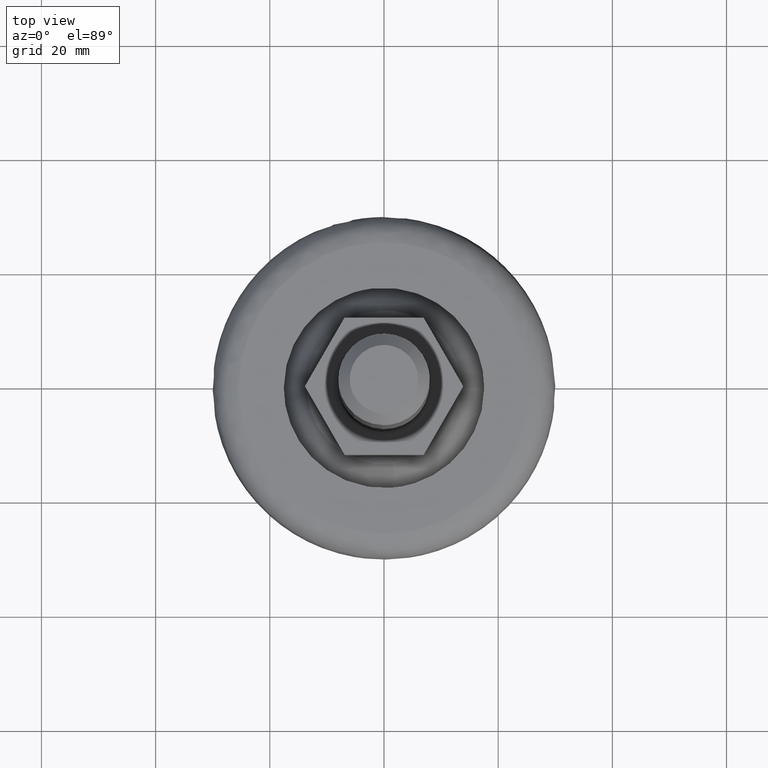
[diagram: clean part render]
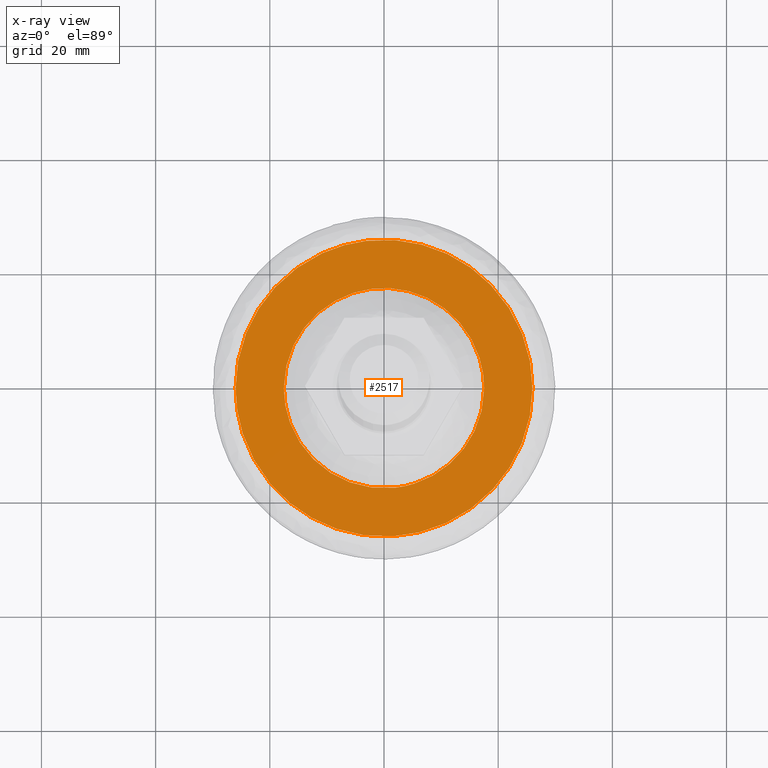
[diagram: x-ray — body ghosted, one internal face saturated and labeled with its STEP entity id]
A machine part, top view, then the same camera in x-ray: the body is ghosted and one INTERNAL B-rep face — a face not visible from any outside direction — is saturated and labeled: STEP entity #2517.
In plain terms, the highlighted face is a freeform B-spline surface patch.
Its self-contained STEP definition (entity closure, byte-faithful):
#1408=CARTESIAN_POINT('',(-3.068872563953968,25.818249769996001,5.599999999998845));
#1409=VERTEX_POINT('',#1408);
#1410=CARTESIAN_POINT('',(26.0,0.0,5.600000000000000));
#1411=VERTEX_POINT('',#1410);
#1412=CARTESIAN_POINT('',(-3.068872563953968,25.818249769996008,5.599999999998845));
#1413=CARTESIAN_POINT('',(-1.539818249689574,25.999999999999996,5.600000000000001));
#1414=CARTESIAN_POINT('',(0.0,26.0,5.600000000000000));
#1415=CARTESIAN_POINT('',(26.000000000000007,26.000000000000007,5.599999999999999));
#1416=CARTESIAN_POINT('',(26.0,0.0,5.600000000000000));
#1424=(BOUNDED_CURVE()B_SPLINE_CURVE(2,(#1412,#1413,#1414,#1415,#1416),.UNSPECIFIED.,.F.,.U.)B_SPLINE_CURVE_WITH_KNOTS((3,2,3),(0.229562588311610,0.250000000000000,0.500000000000000),.UNSPECIFIED.)CURVE()GEOMETRIC_REPRESENTATION_ITEM()RATIONAL_B_SPLINE_CURVE((0.956026979192801,0.976056082825487,1.0,0.707106781186547,1.0))REPRESENTATION_ITEM(''));
#1425=EDGE_CURVE('',#1409,#1411,#1424,.T.);
#1427=CARTESIAN_POINT('',(1.587259077241695,-25.951504939438578,5.600000000000044));
#1428=VERTEX_POINT('',#1427);
#1429=CARTESIAN_POINT('',(26.0,0.0,5.600000000000000));
#1430=CARTESIAN_POINT('',(26.000000000000004,-24.458360525639826,5.600000000000000));
#1431=CARTESIAN_POINT('',(1.587259077241695,-25.951504939438582,5.600000000000044));
#1439=(BOUNDED_CURVE()B_SPLINE_CURVE(2,(#1429,#1430,#1431),.UNSPECIFIED.,.F.,.U.)B_SPLINE_CURVE_WITH_KNOTS((3,3),(0.500000000000000,0.739332981860396),.UNSPECIFIED.)CURVE()GEOMETRIC_REPRESENTATION_ITEM()RATIONAL_B_SPLINE_CURVE((1.0,0.719603970298748,0.976072083719230))REPRESENTATION_ITEM(''));
#1440=EDGE_CURVE('',#1411,#1428,#1439,.T.);
#1507=CARTESIAN_POINT('',(-26.0,0.0,5.600000000000000));
#1508=VERTEX_POINT('',#1507);
#1509=CARTESIAN_POINT('',(-26.0,0.0,5.600000000000000));
#1510=CARTESIAN_POINT('',(-25.999999999999996,23.092553470836343,5.600000000000000));
#1511=CARTESIAN_POINT('',(-3.068872563953968,25.818249769996008,5.599999999998845));
#1519=(BOUNDED_CURVE()B_SPLINE_CURVE(2,(#1509,#1510,#1511),.UNSPECIFIED.,.F.,.U.)B_SPLINE_CURVE_WITH_KNOTS((3,3),(0.0,0.229562588311610),.UNSPECIFIED.)CURVE()GEOMETRIC_REPRESENTATION_ITEM()RATIONAL_B_SPLINE_CURVE((1.0,0.731050698361060,0.956026979192801))REPRESENTATION_ITEM(''));
#1520=EDGE_CURVE('',#1508,#1409,#1519,.T.);
#1554=CARTESIAN_POINT('',(1.587259077241695,-25.951504939438582,5.600000000000044));
#1555=CARTESIAN_POINT('',(0.794370366294340,-26.0,5.600000000000000));
#1556=CARTESIAN_POINT('',(0.0,-26.0,5.600000000000000));
#1557=CARTESIAN_POINT('',(-26.000000000000007,-26.000000000000007,5.599999999999999));
#1558=CARTESIAN_POINT('',(-26.0,0.0,5.600000000000000));
#1566=(BOUNDED_CURVE()B_SPLINE_CURVE(2,(#1554,#1555,#1556,#1557,#1558),.UNSPECIFIED.,.F.,.U.)B_SPLINE_CURVE_WITH_KNOTS((3,2,3),(0.739332981860396,0.750000000000000,1.0),.UNSPECIFIED.)CURVE()GEOMETRIC_REPRESENTATION_ITEM()RATIONAL_B_SPLINE_CURVE((0.976072083719230,0.987502810887799,1.0,0.707106781186547,1.0))REPRESENTATION_ITEM(''));
#1567=EDGE_CURVE('',#1428,#1508,#1566,.T.);
#2298=CARTESIAN_POINT('',(17.544633132703218,0.0,5.599988525923004));
#2299=VERTEX_POINT('',#2298);
#2313=CARTESIAN_POINT('',(-17.544628915358050,0.0,5.600000000000000));
#2314=VERTEX_POINT('',#2313);
#2315=CARTESIAN_POINT('',(-17.544628915358050,0.0,5.600000000000000));
#2316=CARTESIAN_POINT('',(-17.544628915358054,17.544628915358054,5.599999999999999));
#2317=CARTESIAN_POINT('',(0.000002108672584,17.544628915358050,5.599994262961502));
#2318=CARTESIAN_POINT('',(17.544633132703225,17.544628915358054,5.599988525923004));
#2319=CARTESIAN_POINT('',(17.544633132703218,0.0,5.599988525923004));
#2327=(BOUNDED_CURVE()B_SPLINE_CURVE(2,(#2315,#2316,#2317,#2318,#2319),.UNSPECIFIED.,.F.,.U.)B_SPLINE_CURVE_WITH_KNOTS((3,2,3),(0.0,0.250000000000000,0.500000000000000),.UNSPECIFIED.)CURVE()GEOMETRIC_REPRESENTATION_ITEM()RATIONAL_B_SPLINE_CURVE((1.0,0.707106781186547,1.0,0.707106781186547,1.0))REPRESENTATION_ITEM(''));
#2328=EDGE_CURVE('',#2314,#2299,#2327,.T.);
#2330=CARTESIAN_POINT('',(2.025777056682500,-17.427284099783410,5.599999999974578));
#2331=VERTEX_POINT('',#2330);
#2332=CARTESIAN_POINT('',(2.025777056682500,-17.427284099783414,5.599999999974578));
#2333=CARTESIAN_POINT('',(1.016287176278231,-17.544628915358050,5.600000000000000));
#2334=CARTESIAN_POINT('',(0.0,-17.544628915358050,5.600000000000000));
#2335=CARTESIAN_POINT('',(-17.544628915358054,-17.544628915358054,5.599999999999999));
#2336=CARTESIAN_POINT('',(-17.544628915358050,0.0,5.600000000000000));
#2344=(BOUNDED_CURVE()B_SPLINE_CURVE(2,(#2332,#2333,#2334,#2335,#2336),.UNSPECIFIED.,.F.,.U.)B_SPLINE_CURVE_WITH_KNOTS((3,2,3),(0.729999999997280,0.750000000000000,1.0),.UNSPECIFIED.)CURVE()GEOMETRIC_REPRESENTATION_ITEM()RATIONAL_B_SPLINE_CURVE((0.956886118185306,0.976568542491737,1.0,0.707106781186547,1.0))REPRESENTATION_ITEM(''));
#2345=EDGE_CURVE('',#2331,#2314,#2344,.T.);
#2388=CARTESIAN_POINT('',(17.544633132703218,0.0,5.599988525923004));
#2389=CARTESIAN_POINT('',(17.544631023961060,-15.623346442974542,5.599994262948790));
#2390=CARTESIAN_POINT('',(2.025777056682500,-17.427284099783417,5.599999999974578));
#2398=(BOUNDED_CURVE()B_SPLINE_CURVE(2,(#2388,#2389,#2390),.UNSPECIFIED.,.F.,.U.)B_SPLINE_CURVE_WITH_KNOTS((3,3),(0.500000000000000,0.729999999997279),.UNSPECIFIED.)CURVE()GEOMETRIC_REPRESENTATION_ITEM()RATIONAL_B_SPLINE_CURVE((1.0,0.730538238694811,0.956886118185304))REPRESENTATION_ITEM(''));
#2399=EDGE_CURVE('',#2299,#2331,#2398,.T.);
#2501=CARTESIAN_POINT('',(-28.597399899213912,-28.596768058601580,5.600000000000000));
#2502=CARTESIAN_POINT('',(28.597401293962601,-28.596768058601580,5.600000000000000));
#2503=CARTESIAN_POINT('',(-28.597399899213912,28.596927059951980,5.600000000000000));
#2504=CARTESIAN_POINT('',(28.597401293962601,28.596927059951980,5.600000000000000));
#2505=B_SPLINE_SURFACE_WITH_KNOTS('',1,1,((#2501,#2503),(#2502,#2504)),.UNSPECIFIED.,.F.,.F.,.U.,(2,2),(2,2),(0.0,57.194801193176502),(0.0,57.193695118553563),.UNSPECIFIED.);
#2506=ORIENTED_EDGE('',*,*,#1567,.F.);
#2507=ORIENTED_EDGE('',*,*,#1440,.F.);
#2508=ORIENTED_EDGE('',*,*,#1425,.F.);
#2509=ORIENTED_EDGE('',*,*,#1520,.F.);
#2510=EDGE_LOOP('',(#2506,#2507,#2508,#2509));
#2511=FACE_OUTER_BOUND('',#2510,.T.);
#2512=ORIENTED_EDGE('',*,*,#2328,.T.);
#2513=ORIENTED_EDGE('',*,*,#2399,.T.);
#2514=ORIENTED_EDGE('',*,*,#2345,.T.);
#2515=EDGE_LOOP('',(#2512,#2513,#2514));
#2516=FACE_BOUND('',#2515,.T.);
#2517=ADVANCED_FACE('',(#2511,#2516),#2505,.T.);